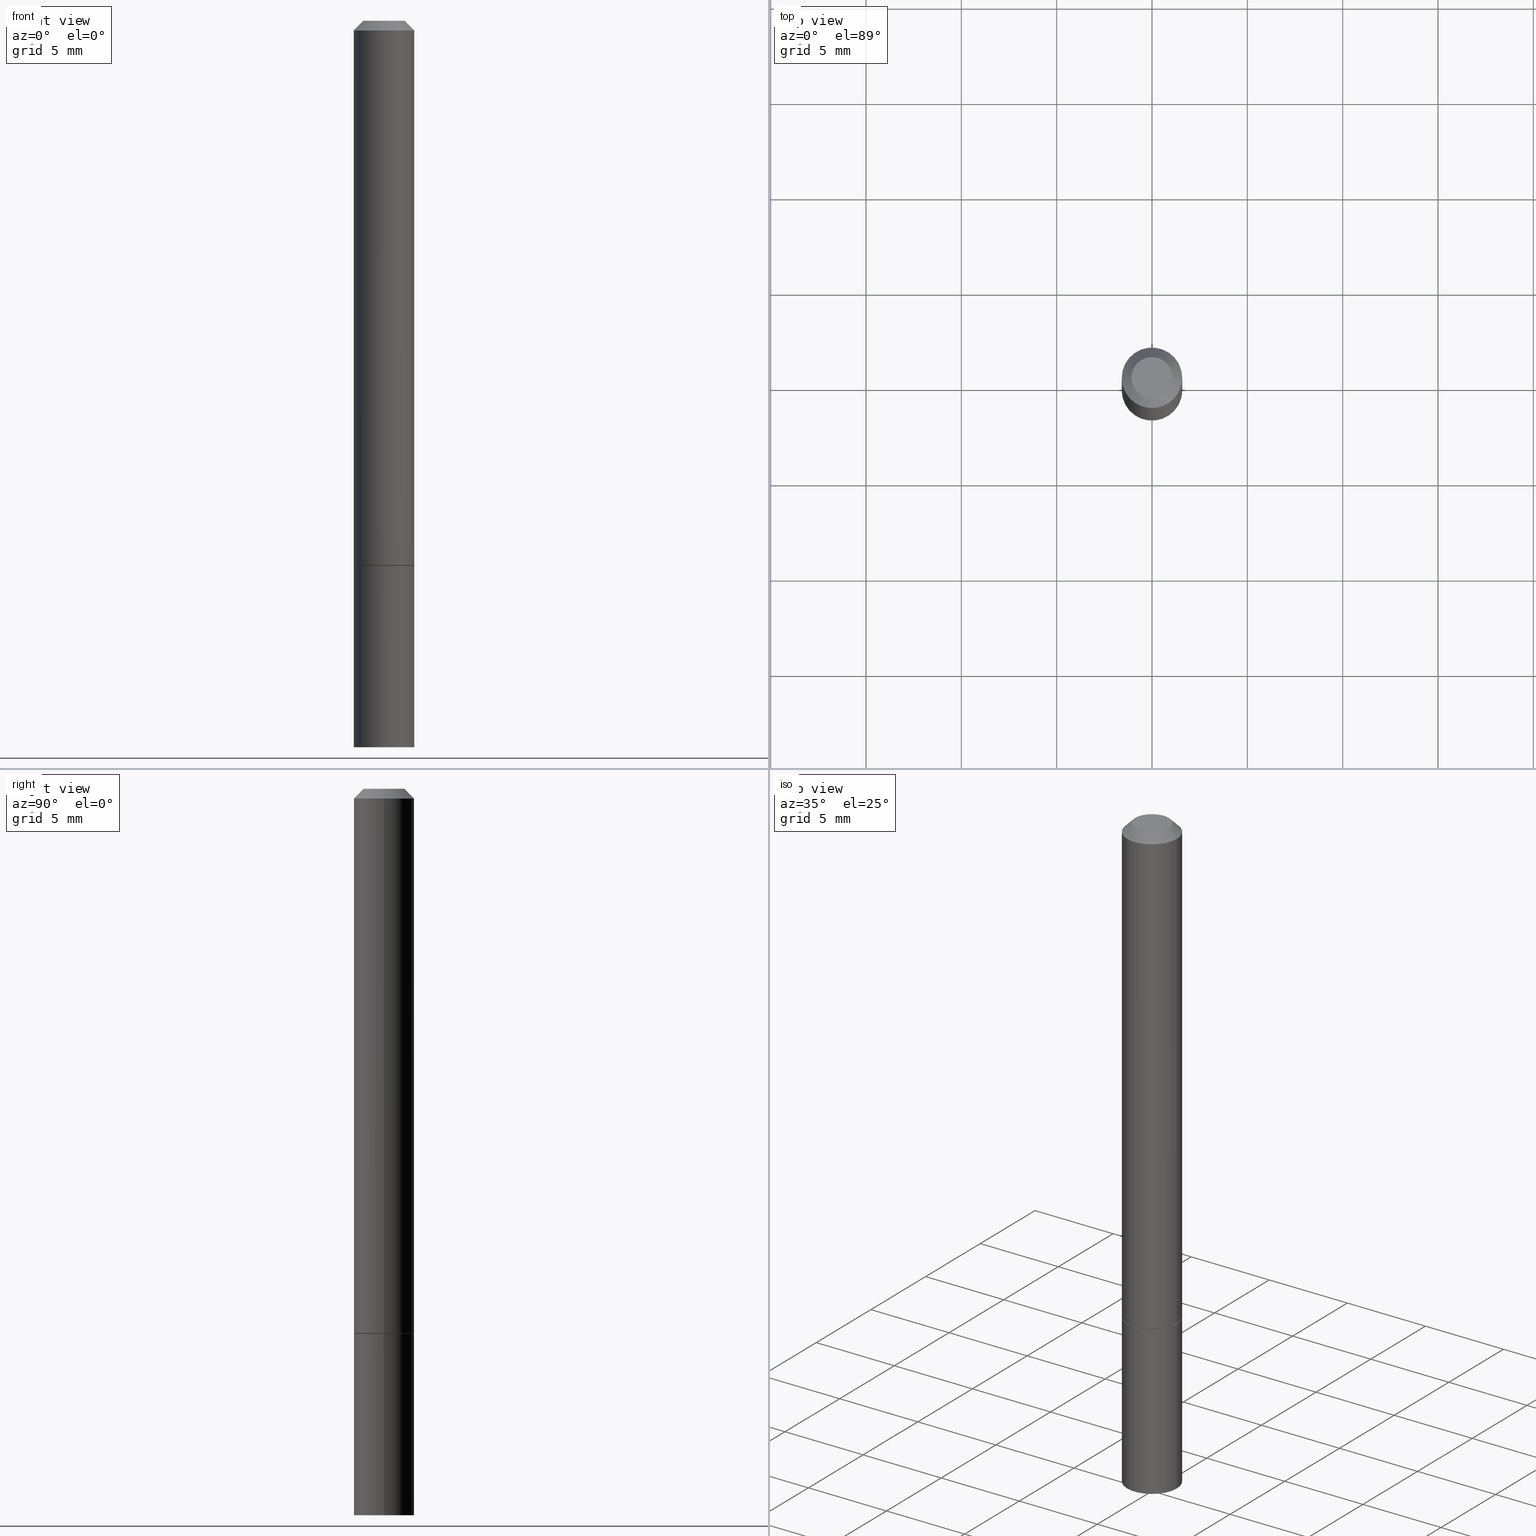
[diagram: canonical four-view strip — front | top / right | iso, engineering-drawing reading convention]
A machine part, canonical four-view strip (front | top / right | iso — engineering-drawing reading convention). The complete STEP part file that produces these views, byte-faithful:
ISO-10303-21;
HEADER;
FILE_DESCRIPTION (( 'STEP AP203' ),
    '1' );
FILE_NAME ('36404.STEP',
    '2024-02-27T19:16:08',
    ( '' ),
    ( '' ),
    'SwSTEP 2.0',
    'SolidWorks 2023',
    '' );
FILE_SCHEMA (( 'CONFIG_CONTROL_DESIGN' ));
ENDSEC;

DATA;
#1 = DIRECTION ( 'NONE',  ( -2.445468806185136597E-29, 3.491481338843145583E-15, 1.000000000000000000 ) ) ;
#2 = EDGE_LOOP ( 'NONE', ( #313, #316, #230, #118 ) ) ;
#3 = ORIENTED_EDGE ( 'NONE', *, *, #249, .F. ) ;
#4 = APPROVAL_PERSON_ORGANIZATION ( #197, #144, #23 ) ;
#5 = ORIENTED_EDGE ( 'NONE', *, *, #258, .T. ) ;
#6 = DIRECTION ( 'NONE',  ( 1.000000000000000000, 0.000000000000000000, 0.000000000000000000 ) ) ;
#7 = LINE ( 'NONE', #36, #360 ) ;
#8 = DIMENSIONAL_EXPONENTS ( 1.000000000000000000, 0.000000000000000000, 0.000000000000000000, 0.000000000000000000, 0.000000000000000000, 0.000000000000000000, 0.000000000000000000 ) ;
#9 = DIRECTION ( 'NONE',  ( 1.000000000000000000, -6.982962677686269077E-15, 0.000000000000000000 ) ) ;
#10 = DIRECTION ( 'NONE',  ( 1.000000000000000000, -6.982962677686267499E-15, 4.879498284297452955E-29 ) ) ;
#11 = DIRECTION ( 'NONE',  ( -2.445468806185136877E-29, 3.491481338843145188E-15, 1.000000000000000000 ) ) ;
#12 = CIRCLE ( 'NONE', #30, 0.06249999999999988204 ) ;
#13 = DIRECTION ( 'NONE',  ( -2.445468806185136597E-29, 3.491481338843145583E-15, 1.000000000000000000 ) ) ;
#14 = CARTESIAN_POINT ( 'NONE',  ( 3.668203209277706016E-29, -5.237222008264719754E-15, -1.500000000000000444 ) ) ;
#15 = DIRECTION ( 'NONE',  ( 1.000000000000000000, -6.982962677686269077E-15, 0.000000000000000000 ) ) ;
#16 = ORIENTED_EDGE ( 'NONE', *, *, #59, .F. ) ;
#17 = CONICAL_SURFACE ( 'NONE', #303, 0.06249999999999988204, 0.7853981633974467247 ) ;
#18 = CARTESIAN_POINT ( 'NONE',  ( 4.890937612370284544E-31, -6.982962677686307633E-17, -0.02000000000000004552 ) ) ;
#19 = DIRECTION ( 'NONE',  ( 2.438088387897960049E-29, -3.491481338843145188E-15, -1.000000000000000000 ) ) ;
#20 = PRODUCT ( '36404', '36404', '', ( #344 ) ) ;
#21 = DATE_AND_TIME ( #280, #33 ) ;
#22 = ORIENTED_EDGE ( 'NONE', *, *, #275, .F. ) ;
#23 = APPROVAL_ROLE ( '' ) ;
#24 = PRODUCT_DEFINITION_FORMATION_WITH_SPECIFIED_SOURCE ( 'ANY', '', #20, .NOT_KNOWN. ) ;
#25 = CONICAL_SURFACE ( 'NONE', #283, 0.06150000000000001299, 0.7853981633974141952 ) ;
#26 = LINE ( 'NONE', #340, #174 ) ;
#27 = EDGE_LOOP ( 'NONE', ( #51, #53, #330, #286 ) ) ;
#28 = DATE_AND_TIME ( #285, #296 ) ;
#29 = AXIS2_PLACEMENT_3D ( 'NONE', #98, #208, #35 ) ;
#30 = AXIS2_PLACEMENT_3D ( 'NONE', #105, #126, #100 ) ;
#31 = APPROVAL ( #354, 'UNSPECIFIED' ) ;
#32 = VERTEX_POINT ( 'NONE', #97 ) ;
#33 = LOCAL_TIME ( 14, 16, 8.000000000000000000, #326 ) ;
#34 = DIRECTION ( 'NONE',  ( -2.445468806185136597E-29, 3.491481338843145583E-15, 1.000000000000000000 ) ) ;
#35 = DIRECTION ( 'NONE',  ( 1.000000000000000000, -6.982962677686268288E-15, 0.000000000000000000 ) ) ;
#36 = CARTESIAN_POINT ( 'NONE',  ( -0.06249999999999995143, 4.440892098500622710E-16, -3.074334431409313661E-30 ) ) ;
#37 = FACE_OUTER_BOUND ( 'NONE', #130, .T. ) ;
#38 = DIRECTION ( 'NONE',  ( -1.000000000000000000, 6.982962677686265922E-15, -4.876176775795935793E-29 ) ) ;
#39 = APPROVAL_PERSON_ORGANIZATION ( #165, #31, #75 ) ;
#40 = VECTOR ( 'NONE', #183, 39.37007874015748143 ) ;
#41 = CARTESIAN_POINT ( 'NONE',  ( -0.06250000000000001388, -4.138480047381567268E-15, -1.125000000000000444 ) ) ;
#42 = CARTESIAN_POINT ( 'NONE',  ( 0.06249999999999995143, -4.364351673553913243E-16, 3.047610484872457418E-30 ) ) ;
#43 = UNCERTAINTY_MEASURE_WITH_UNIT (LENGTH_MEASURE( 1.000000000000000082E-05 ), #350, 'distance_accuracy_value', 'NONE');
#44 = DIRECTION ( 'NONE',  ( 1.000000000000000000, -6.982962677686267499E-15, 4.879498284297452955E-29 ) ) ;
#45 = APPLICATION_PROTOCOL_DEFINITION ( 'international standard', 'config_control_design', 1994, #83 ) ;
#46 = DIRECTION ( 'NONE',  ( -2.445468806185136597E-29, 3.491481338843145583E-15, 1.000000000000000000 ) ) ;
#47 = ORIENTED_EDGE ( 'NONE', *, *, #268, .F. ) ;
#48 = AXIS2_PLACEMENT_3D ( 'NONE', #190, #46, #162 ) ;
#49 = DIRECTION ( 'NONE',  ( 1.000000000000000000, -6.982962677686266711E-15, 4.876176775795935793E-29 ) ) ;
#50 = PERSON_AND_ORGANIZATION_ROLE ( 'design_owner' ) ;
#51 = ORIENTED_EDGE ( 'NONE', *, *, #275, .T. ) ;
#52 = PLANE ( 'NONE',  #254 ) ;
#53 = ORIENTED_EDGE ( 'NONE', *, *, #343, .T. ) ;
#54 = CONICAL_SURFACE ( 'NONE', #29, 0.06150000000000001299, 0.7853981633974141952 ) ;
#55 = SHAPE_DEFINITION_REPRESENTATION ( #334, #86 ) ;
#56 = EDGE_CURVE ( 'NONE', #342, #248, #26, .T. ) ;
#57 = APPROVAL_STATUS ( 'not_yet_approved' ) ;
#58 = ADVANCED_FACE ( 'NONE', ( #201 ), #25, .T. ) ;
#59 = EDGE_CURVE ( 'NONE', #248, #206, #12, .T. ) ;
#60 = ORIENTED_EDGE ( 'NONE', *, *, #238, .F. ) ;
#61 = CARTESIAN_POINT ( 'NONE',  ( 2.748706938152094189E-29, -3.924425024859697006E-15, -1.124000000000000332 ) ) ;
#62 = APPLICATION_PROTOCOL_DEFINITION ( 'international standard', 'config_control_design', 1994, #121 ) ;
#63 = AXIS2_PLACEMENT_3D ( 'NONE', #159, #13, #68 ) ;
#64 = LINE ( 'NONE', #160, #355 ) ;
#65 = ADVANCED_FACE ( 'NONE', ( #322 ), #67, .T. ) ;
#66 = DIRECTION ( 'NONE',  ( -2.445468806185136597E-29, 3.491481338843145583E-15, 1.000000000000000000 ) ) ;
#67 = CYLINDRICAL_SURFACE ( 'NONE', #234, 0.06250000000000001388 ) ;
#68 = DIRECTION ( 'NONE',  ( 1.000000000000000000, -6.982962677686267499E-15, 4.876176775795935793E-29 ) ) ;
#69 = CARTESIAN_POINT ( 'NONE',  ( 4.364351673554192795E-16, 0.06249999999999608646, -1.125000000000000666 ) ) ;
#70 = DIRECTION ( 'NONE',  ( 1.000000000000000000, -6.982962677686261189E-15, 0.000000000000000000 ) ) ;
#71 = APPROVAL_PERSON_ORGANIZATION ( #259, #127, #228 ) ;
#72 = PRODUCT_RELATED_PRODUCT_CATEGORY ( 'detail', '', ( #20 ) ) ;
#73 = COORDINATED_UNIVERSAL_TIME_OFFSET ( 5, 0, .BEHIND. ) ;
#74 = CARTESIAN_POINT ( 'NONE',  ( -0.06250000000000001388, 4.440892098500627148E-16, -3.074334431409317165E-30 ) ) ;
#75 = APPROVAL_ROLE ( '' ) ;
#76 = DIRECTION ( 'NONE',  ( -2.445468806185136597E-29, 3.491481338843145583E-15, 1.000000000000000000 ) ) ;
#77 = ORIENTED_EDGE ( 'NONE', *, *, #119, .F. ) ;
#78 = DIRECTION ( 'NONE',  ( 2.438088387897960049E-29, -3.491481338843145188E-15, -1.000000000000000000 ) ) ;
#79 = LOCAL_TIME ( 14, 16, 8.000000000000000000, #73 ) ;
#80 = PLANE ( 'NONE',  #158 ) ;
#81 = ORIENTED_EDGE ( 'NONE', *, *, #123, .T. ) ;
#82 = PERSON_AND_ORGANIZATION_ROLE ( 'creator' ) ;
#83 = APPLICATION_CONTEXT ( 'configuration controlled 3d designs of mechanical parts and assemblies' ) ;
#84 = DATE_AND_TIME ( #88, #106 ) ;
#85 = ADVANCED_FACE ( 'NONE', ( #242 ), #327, .T. ) ;
#86 = ADVANCED_BREP_SHAPE_REPRESENTATION ( '36404', ( #291, #300, #253 ), #198 ) ;
#87 = DIRECTION ( 'NONE',  ( 0.7071067811865464625, -7.319954787623252890E-15, -0.7071067811865486830 ) ) ;
#88 = CALENDAR_DATE ( 2024, 27, 2 ) ;
#89 = ADVANCED_FACE ( 'NONE', ( #213 ), #151, .F. ) ;
#90 = EDGE_LOOP ( 'NONE', ( #22, #47 ) ) ;
#91 = EDGE_CURVE ( 'NONE', #290, #248, #103, .T. ) ;
#92 = APPROVAL_STATUS ( 'not_yet_approved' ) ;
#93 = LOCAL_TIME ( 14, 16, 8.000000000000000000, #255 ) ;
#94 = ORIENTED_EDGE ( 'NONE', *, *, #195, .F. ) ;
#95 = AXIS2_PLACEMENT_3D ( 'NONE', #363, #78, #222 ) ;
#96 =( NAMED_UNIT ( * ) PLANE_ANGLE_UNIT ( ) SI_UNIT ( $, .RADIAN. ) );
#97 = CARTESIAN_POINT ( 'NONE',  ( 0.06250000000000001388, -4.364351673553932471E-15, -1.125000000000000444 ) ) ;
#98 = CARTESIAN_POINT ( 'NONE',  ( 2.751152406958279792E-29, -3.927916506198540013E-15, -1.125000000000000444 ) ) ;
#99 = CARTESIAN_POINT ( 'NONE',  ( -0.06150000000000001299, -3.485634269357856397E-15, -1.125000000000000444 ) ) ;
#100 = DIRECTION ( 'NONE',  ( 1.000000000000000000, -6.982962677686266711E-15, 0.000000000000000000 ) ) ;
#101 = CIRCLE ( 'NONE', #163, 0.06250000000000001388 ) ;
#102 = CARTESIAN_POINT ( 'NONE',  ( 2.751152406958279792E-29, -3.927916506198540013E-15, -1.125000000000000444 ) ) ;
#103 = LINE ( 'NONE', #42, #40 ) ;
#104 = EDGE_CURVE ( 'NONE', #289, #290, #110, .T. ) ;
#105 = CARTESIAN_POINT ( 'NONE',  ( 4.890937612370284544E-31, -6.982962677686307633E-17, -0.02000000000000004552 ) ) ;
#106 = LOCAL_TIME ( 14, 16, 8.000000000000000000, #264 ) ;
#107 = AXIS2_PLACEMENT_3D ( 'NONE', #61, #348, #9 ) ;
#108 = DIRECTION ( 'NONE',  ( 1.000000000000000000, -6.982962677686268288E-15, 0.000000000000000000 ) ) ;
#109 = CARTESIAN_POINT ( 'NONE',  ( 2.751152406958279792E-29, -3.927916506198540013E-15, -1.125000000000000444 ) ) ;
#110 = CIRCLE ( 'NONE', #107, 0.06250000000000001388 ) ;
#111 = DIRECTION ( 'NONE',  ( -1.000000000000000000, 6.982962677686266711E-15, 0.000000000000000000 ) ) ;
#112 = ORIENTED_EDGE ( 'NONE', *, *, #119, .T. ) ;
#113 = DATE_AND_TIME ( #362, #93 ) ;
#114 = ORIENTED_EDGE ( 'NONE', *, *, #343, .F. ) ;
#115 = PERSON_AND_ORGANIZATION ( #281, #241 ) ;
#116 = ORIENTED_EDGE ( 'NONE', *, *, #187, .T. ) ;
#117 = CARTESIAN_POINT ( 'NONE',  ( 0.04249999999999991979, -3.950909582714363008E-16, -2.561107494060004870E-17 ) ) ;
#118 = ORIENTED_EDGE ( 'NONE', *, *, #147, .F. ) ;
#119 = EDGE_CURVE ( 'NONE', #289, #206, #7, .T. ) ;
#120 = FACE_OUTER_BOUND ( 'NONE', #192, .T. ) ;
#121 = APPLICATION_CONTEXT ( 'configuration controlled 3d designs of mechanical parts and assemblies' ) ;
#122 = CARTESIAN_POINT ( 'NONE',  ( -0.06150000000000001299, -3.490932723706078799E-15, -1.125000000000000444 ) ) ;
#123 = EDGE_CURVE ( 'NONE', #142, #138, #149, .T. ) ;
#124 = DIRECTION ( 'NONE',  ( -2.445468806185136597E-29, 3.491481338843145583E-15, 1.000000000000000000 ) ) ;
#125 = CYLINDRICAL_SURFACE ( 'NONE', #63, 0.06250000000000001388 ) ;
#126 = DIRECTION ( 'NONE',  ( -2.445468806185136597E-29, 3.491481338843145583E-15, 1.000000000000000000 ) ) ;
#127 = APPROVAL ( #57, 'UNSPECIFIED' ) ;
#128 = CARTESIAN_POINT ( 'NONE',  ( -0.06250000000000001388, -4.138480047381567268E-15, -1.500000000000000444 ) ) ;
#129 = CIRCLE ( 'NONE', #223, 0.06250000000000001388 ) ;
#130 = EDGE_LOOP ( 'NONE', ( #265, #366, #282, #94 ) ) ;
#131 = EDGE_CURVE ( 'NONE', #138, #142, #101, .T. ) ;
#132 = CLOSED_SHELL ( 'NONE', ( #353, #231, #89, #65 ) ) ;
#133 = DIRECTION ( 'NONE',  ( 0.7071067811865232589, -2.468850131082003836E-15, 0.7071067811865715536 ) ) ;
#134 = EDGE_LOOP ( 'NONE', ( #257, #245 ) ) ;
#135 = LINE ( 'NONE', #74, #339 ) ;
#136 = APPROVAL_DATE_TIME ( #21, #31 ) ;
#137 = CARTESIAN_POINT ( 'NONE',  ( 0.06150000000000001299, -4.357368710876245668E-15, -1.125000000000000444 ) ) ;
#138 = VERTEX_POINT ( 'NONE', #185 ) ;
#139 = CIRCLE ( 'NONE', #365, 0.04249999999999991979 ) ;
#140 = CIRCLE ( 'NONE', #199, 0.06250000000000001388 ) ;
#141 = CC_DESIGN_PERSON_AND_ORGANIZATION_ASSIGNMENT ( #288, #171, ( #157 ) ) ;
#142 = VERTEX_POINT ( 'NONE', #128 ) ;
#143 = AXIS2_PLACEMENT_3D ( 'NONE', #247, #357, #108 ) ;
#144 = APPROVAL ( #92, 'UNSPECIFIED' ) ;
#145 = AXIS2_PLACEMENT_3D ( 'NONE', #304, #191, #15 ) ;
#146 = ORIENTED_EDGE ( 'NONE', *, *, #187, .F. ) ;
#147 = EDGE_CURVE ( 'NONE', #335, #206, #64, .T. ) ;
#148 = AXIS2_PLACEMENT_3D ( 'NONE', #188, #76, #44 ) ;
#149 = CIRCLE ( 'NONE', #321, 0.06250000000000001388 ) ;
#150 = PERSON_AND_ORGANIZATION ( #281, #241 ) ;
#151 = PLANE ( 'NONE',  #205 ) ;
#152 = EDGE_CURVE ( 'NONE', #32, #332, #140, .T. ) ;
#153 = CARTESIAN_POINT ( 'NONE',  ( 6.263108486011318528E-46, -8.942059022282683748E-32, -2.561107494060246767E-17 ) ) ;
#154 = CARTESIAN_POINT ( 'NONE',  ( 3.668203209277706016E-29, -5.237222008264719754E-15, -1.500000000000000444 ) ) ;
#155 = CC_DESIGN_PERSON_AND_ORGANIZATION_ASSIGNMENT ( #150, #50, ( #20 ) ) ;
#156 =( LENGTH_UNIT ( ) NAMED_UNIT ( * ) SI_UNIT ( $, .METRE. ) );
#157 = SECURITY_CLASSIFICATION ( '', '', #312 ) ;
#158 = AXIS2_PLACEMENT_3D ( 'NONE', #279, #19, #301 ) ;
#159 = CARTESIAN_POINT ( 'NONE',  ( 0.000000000000000000, 0.000000000000000000, 0.000000000000000000 ) ) ;
#160 = CARTESIAN_POINT ( 'NONE',  ( -0.06249999999999988204, 3.666055405785277303E-16, -0.02000000000000004552 ) ) ;
#161 = CARTESIAN_POINT ( 'NONE',  ( 0.06150000000000001299, -4.357368710876245668E-15, -1.125000000000000444 ) ) ;
#162 = DIRECTION ( 'NONE',  ( 1.000000000000000000, -6.982962677686266711E-15, 4.876176775795935793E-29 ) ) ;
#163 = AXIS2_PLACEMENT_3D ( 'NONE', #14, #318, #237 ) ;
#164 = FACE_OUTER_BOUND ( 'NONE', #172, .T. ) ;
#165 = PERSON_AND_ORGANIZATION ( #281, #241 ) ;
#166 = DIRECTION ( 'NONE',  ( -2.445468806185136877E-29, 3.491481338843145188E-15, 1.000000000000000000 ) ) ;
#167 = CC_DESIGN_PERSON_AND_ORGANIZATION_ASSIGNMENT ( #204, #337, ( #24 ) ) ;
#168 = ORIENTED_EDGE ( 'NONE', *, *, #91, .T. ) ;
#169 = CC_DESIGN_APPROVAL ( #127, ( #24 ) ) ;
#170 = ORIENTED_EDGE ( 'NONE', *, *, #195, .T. ) ;
#171 = PERSON_AND_ORGANIZATION_ROLE ( 'classification_officer' ) ;
#172 = EDGE_LOOP ( 'NONE', ( #278, #284 ) ) ;
#173 = VECTOR ( 'NONE', #215, 39.37007874015748854 ) ;
#174 = VECTOR ( 'NONE', #87, 39.37007874015748143 ) ;
#175 = ORIENTED_EDGE ( 'NONE', *, *, #349, .F. ) ;
#176 = DIRECTION ( 'NONE',  ( 1.000000000000000000, -6.982962677686268288E-15, 0.000000000000000000 ) ) ;
#177 = EDGE_LOOP ( 'NONE', ( #224, #116 ) ) ;
#178 = CARTESIAN_POINT ( 'NONE',  ( 0.000000000000000000, 0.000000000000000000, 0.000000000000000000 ) ) ;
#179 = AXIS2_PLACEMENT_3D ( 'NONE', #180, #294, #325 ) ;
#180 = CARTESIAN_POINT ( 'NONE',  ( 4.890937612370284544E-31, -6.982962677686307633E-17, -0.02000000000000004552 ) ) ;
#181 = ADVANCED_FACE ( 'NONE', ( #320 ), #243, .T. ) ;
#182 = LINE ( 'NONE', #122, #173 ) ;
#183 = DIRECTION ( 'NONE',  ( -2.445468806185136877E-29, 3.491481338843145188E-15, 1.000000000000000000 ) ) ;
#184 = DIRECTION ( 'NONE',  ( 1.000000000000000000, -6.982962677686266711E-15, 0.000000000000000000 ) ) ;
#185 = CARTESIAN_POINT ( 'NONE',  ( 0.06250000000000001388, -5.673657175620110635E-15, -1.500000000000000444 ) ) ;
#186 = CALENDAR_DATE ( 2024, 27, 2 ) ;
#187 = EDGE_CURVE ( 'NONE', #332, #32, #305, .T. ) ;
#188 = CARTESIAN_POINT ( 'NONE',  ( 6.263108486011318528E-46, -8.942059022282683748E-32, -2.561107494060246767E-17 ) ) ;
#189 = DATE_AND_TIME ( #186, #79 ) ;
#190 = CARTESIAN_POINT ( 'NONE',  ( 0.000000000000000000, 0.000000000000000000, 0.000000000000000000 ) ) ;
#191 = DIRECTION ( 'NONE',  ( -2.445468806185136597E-29, 3.491481338843145583E-15, 1.000000000000000000 ) ) ;
#192 = EDGE_LOOP ( 'NONE', ( #114, #302, #5, #219 ) ) ;
#193 = CARTESIAN_POINT ( 'NONE',  ( 0.06249999999999988204, -4.986107516375829362E-16, -0.02000000000000004552 ) ) ;
#194 = EDGE_LOOP ( 'NONE', ( #60, #81, #170, #146 ) ) ;
#195 = EDGE_CURVE ( 'NONE', #138, #32, #196, .T. ) ;
#196 = LINE ( 'NONE', #306, #314 ) ;
#197 = PERSON_AND_ORGANIZATION ( #281, #241 ) ;
#198 =( GEOMETRIC_REPRESENTATION_CONTEXT ( 3 ) GLOBAL_UNCERTAINTY_ASSIGNED_CONTEXT ( ( #43 ) ) GLOBAL_UNIT_ASSIGNED_CONTEXT ( ( #350, #96, #324 ) ) REPRESENTATION_CONTEXT ( 'NONE', 'WORKASPACE' ) );
#199 = AXIS2_PLACEMENT_3D ( 'NONE', #102, #295, #211 ) ;
#200 = ADVANCED_FACE ( 'NONE', ( #164 ), #80, .F. ) ;
#201 = FACE_OUTER_BOUND ( 'NONE', #27, .T. ) ;
#202 = APPROVAL_DATE_TIME ( #28, #127 ) ;
#203 = CIRCLE ( 'NONE', #352, 0.06249999999999988204 ) ;
#204 = PERSON_AND_ORGANIZATION ( #281, #241 ) ;
#205 = AXIS2_PLACEMENT_3D ( 'NONE', #69, #272, #38 ) ;
#206 = VERTEX_POINT ( 'NONE', #308 ) ;
#207 = PRODUCT_DEFINITION ( 'UNKNOWN', '', #24, #346 ) ;
#208 = DIRECTION ( 'NONE',  ( -2.445468806185136597E-29, 3.491481338843145583E-15, 1.000000000000000000 ) ) ;
#209 = CARTESIAN_POINT ( 'NONE',  ( 0.000000000000000000, 0.000000000000000000, 0.000000000000000000 ) ) ;
#210 = ADVANCED_FACE ( 'NONE', ( #331 ), #52, .F. ) ;
#211 = DIRECTION ( 'NONE',  ( 1.000000000000000000, -6.982962677686269077E-15, 0.000000000000000000 ) ) ;
#212 = VECTOR ( 'NONE', #133, 39.37007874015748854 ) ;
#213 = FACE_OUTER_BOUND ( 'NONE', #177, .T. ) ;
#214 = CC_DESIGN_DATE_AND_TIME_ASSIGNMENT ( #189, #246, ( #207 ) ) ;
#215 = DIRECTION ( 'NONE',  ( -0.7071067811865232589, 7.493145998870265808E-15, 0.7071067811865715536 ) ) ;
#216 = CARTESIAN_POINT ( 'NONE',  ( 0.000000000000000000, 0.000000000000000000, 0.000000000000000000 ) ) ;
#217 = CC_DESIGN_APPROVAL ( #144, ( #157 ) ) ;
#218 = FACE_OUTER_BOUND ( 'NONE', #2, .T. ) ;
#219 = ORIENTED_EDGE ( 'NONE', *, *, #104, .F. ) ;
#220 = CARTESIAN_POINT ( 'NONE',  ( 2.751152406958279792E-29, -3.927916506198540013E-15, -1.125000000000000444 ) ) ;
#221 = VERTEX_POINT ( 'NONE', #137 ) ;
#222 = DIRECTION ( 'NONE',  ( -1.000000000000000000, 6.982962677686265922E-15, -4.876176775795935793E-29 ) ) ;
#223 = AXIS2_PLACEMENT_3D ( 'NONE', #229, #66, #293 ) ;
#224 = ORIENTED_EDGE ( 'NONE', *, *, #152, .T. ) ;
#225 = ORIENTED_EDGE ( 'NONE', *, *, #104, .T. ) ;
#226 = CIRCLE ( 'NONE', #347, 0.06150000000000001299 ) ;
#227 = ORIENTED_EDGE ( 'NONE', *, *, #349, .T. ) ;
#228 = APPROVAL_ROLE ( '' ) ;
#229 = CARTESIAN_POINT ( 'NONE',  ( 2.748706938152094189E-29, -3.924425024859697006E-15, -1.124000000000000332 ) ) ;
#230 = ORIENTED_EDGE ( 'NONE', *, *, #59, .T. ) ;
#231 = ADVANCED_FACE ( 'NONE', ( #252 ), #277, .T. ) ;
#232 = DATE_TIME_ROLE ( 'classification_date' ) ;
#233 = ADVANCED_FACE ( 'NONE', ( #218 ), #17, .T. ) ;
#234 = AXIS2_PLACEMENT_3D ( 'NONE', #216, #240, #351 ) ;
#235 = EDGE_LOOP ( 'NONE', ( #261, #112, #16, #338 ) ) ;
#236 = CARTESIAN_POINT ( 'NONE',  ( -0.04249999999999991979, 3.316907271900967221E-16, -2.561107494060466786E-17 ) ) ;
#237 = DIRECTION ( 'NONE',  ( 1.000000000000000000, -6.982962677686261189E-15, 0.000000000000000000 ) ) ;
#238 = EDGE_CURVE ( 'NONE', #142, #332, #135, .T. ) ;
#239 = DIRECTION ( 'NONE',  ( -2.445468806185136597E-29, 3.491481338843145583E-15, 1.000000000000000000 ) ) ;
#240 = DIRECTION ( 'NONE',  ( -2.445468806185136597E-29, 3.491481338843145583E-15, 1.000000000000000000 ) ) ;
#241 = ORGANIZATION ( 'UNSPECIFIED', 'UNSPECIFIED', '' ) ;
#242 = FACE_OUTER_BOUND ( 'NONE', #345, .T. ) ;
#243 = CYLINDRICAL_SURFACE ( 'NONE', #298, 0.06249999999999995143 ) ;
#244 = CC_DESIGN_SECURITY_CLASSIFICATION ( #157, ( #24 ) ) ;
#245 = ORIENTED_EDGE ( 'NONE', *, *, #123, .F. ) ;
#246 = DATE_TIME_ROLE ( 'creation_date' ) ;
#247 = CARTESIAN_POINT ( 'NONE',  ( 2.751152406958279792E-29, -3.927916506198540013E-15, -1.125000000000000444 ) ) ;
#248 = VERTEX_POINT ( 'NONE', #193 ) ;
#249 = EDGE_CURVE ( 'NONE', #335, #342, #287, .T. ) ;
#250 = DIRECTION ( 'NONE',  ( -2.445468806185136877E-29, 3.491481338843145188E-15, 1.000000000000000000 ) ) ;
#251 = PERSON_AND_ORGANIZATION ( #281, #241 ) ;
#252 = FACE_OUTER_BOUND ( 'NONE', #134, .T. ) ;
#253 = AXIS2_PLACEMENT_3D ( 'NONE', #209, #267, #6 ) ;
#254 = AXIS2_PLACEMENT_3D ( 'NONE', #109, #328, #256 ) ;
#255 = COORDINATED_UNIVERSAL_TIME_OFFSET ( 5, 0, .BEHIND. ) ;
#256 = DIRECTION ( 'NONE',  ( 1.000000000000000000, -6.982962677686265922E-15, 4.876176775795935793E-29 ) ) ;
#257 = ORIENTED_EDGE ( 'NONE', *, *, #131, .F. ) ;
#258 = EDGE_CURVE ( 'NONE', #221, #290, #359, .T. ) ;
#259 = PERSON_AND_ORGANIZATION ( #281, #241 ) ;
#260 = CARTESIAN_POINT ( 'NONE',  ( 0.06250000000000001388, -4.360860192215088675E-15, -1.124000000000000332 ) ) ;
#261 = ORIENTED_EDGE ( 'NONE', *, *, #297, .T. ) ;
#262 = ADVANCED_FACE ( 'NONE', ( #274 ), #329, .T. ) ;
#263 = ORIENTED_EDGE ( 'NONE', *, *, #56, .F. ) ;
#264 = COORDINATED_UNIVERSAL_TIME_OFFSET ( 5, 0, .BEHIND. ) ;
#265 = ORIENTED_EDGE ( 'NONE', *, *, #131, .T. ) ;
#266 = CIRCLE ( 'NONE', #143, 0.06150000000000001299 ) ;
#267 = DIRECTION ( 'NONE',  ( 0.000000000000000000, 0.000000000000000000, 1.000000000000000000 ) ) ;
#268 = EDGE_CURVE ( 'NONE', #356, #221, #266, .T. ) ;
#269 = DIRECTION ( 'NONE',  ( -2.445468806185136597E-29, 3.491481338843145583E-15, 1.000000000000000000 ) ) ;
#270 = DIRECTION ( 'NONE',  ( 1.000000000000000000, -6.982962677686268288E-15, 0.000000000000000000 ) ) ;
#271 = CARTESIAN_POINT ( 'NONE',  ( 4.890937612370284544E-31, -6.982962677686307633E-17, -0.02000000000000004552 ) ) ;
#272 = DIRECTION ( 'NONE',  ( 2.438088387897960049E-29, -3.491481338843145188E-15, -1.000000000000000000 ) ) ;
#273 = CC_DESIGN_PERSON_AND_ORGANIZATION_ASSIGNMENT ( #251, #82, ( #207 ) ) ;
#274 = FACE_OUTER_BOUND ( 'NONE', #235, .T. ) ;
#275 = EDGE_CURVE ( 'NONE', #221, #356, #226, .T. ) ;
#276 = CC_DESIGN_APPROVAL ( #31, ( #207 ) ) ;
#277 = PLANE ( 'NONE',  #95 ) ;
#278 = ORIENTED_EDGE ( 'NONE', *, *, #249, .T. ) ;
#279 = CARTESIAN_POINT ( 'NONE',  ( 2.967759138016657633E-16, 0.04249999999999991979, -1.611934943711346547E-16 ) ) ;
#280 = CALENDAR_DATE ( 2024, 27, 2 ) ;
#281 = PERSON ( 'UNSPECIFIED', 'UNSPECIFIED', 'UNSPECIFIED', ('UNSPECIFIED'), ('UNSPECIFIED'), ('UNSPECIFIED') ) ;
#282 = ORIENTED_EDGE ( 'NONE', *, *, #152, .F. ) ;
#283 = AXIS2_PLACEMENT_3D ( 'NONE', #311, #34, #270 ) ;
#284 = ORIENTED_EDGE ( 'NONE', *, *, #323, .T. ) ;
#285 = CALENDAR_DATE ( 2024, 27, 2 ) ;
#286 = ORIENTED_EDGE ( 'NONE', *, *, #258, .F. ) ;
#287 = CIRCLE ( 'NONE', #148, 0.04249999999999991979 ) ;
#288 = PERSON_AND_ORGANIZATION ( #281, #241 ) ;
#289 = VERTEX_POINT ( 'NONE', #310 ) ;
#290 = VERTEX_POINT ( 'NONE', #260 ) ;
#291 = MANIFOLD_SOLID_BREP ( 'Body-Move/Copy2[1]', #132 ) ;
#292 = DIRECTION ( 'NONE',  ( -2.445468806185136597E-29, 3.491481338843145583E-15, 1.000000000000000000 ) ) ;
#293 = DIRECTION ( 'NONE',  ( 1.000000000000000000, -6.982962677686269077E-15, 0.000000000000000000 ) ) ;
#294 = DIRECTION ( 'NONE',  ( 2.445468806185136597E-29, -3.491481338843145583E-15, -1.000000000000000000 ) ) ;
#295 = DIRECTION ( 'NONE',  ( -2.445468806185136597E-29, 3.491481338843145583E-15, 1.000000000000000000 ) ) ;
#296 = LOCAL_TIME ( 14, 16, 8.000000000000000000, #364 ) ;
#297 = EDGE_CURVE ( 'NONE', #290, #289, #129, .T. ) ;
#298 = AXIS2_PLACEMENT_3D ( 'NONE', #178, #269, #49 ) ;
#299 = DIRECTION ( 'NONE',  ( -0.7071067811865464625, 2.468850131082245228E-15, -0.7071067811865486830 ) ) ;
#300 = MANIFOLD_SOLID_BREP ( 'Body-Move/Copy2[2]', #341 ) ;
#301 = DIRECTION ( 'NONE',  ( -1.000000000000000000, 6.982962677686265922E-15, -4.876176775795935793E-29 ) ) ;
#302 = ORIENTED_EDGE ( 'NONE', *, *, #268, .T. ) ;
#303 = AXIS2_PLACEMENT_3D ( 'NONE', #18, #333, #111 ) ;
#304 = CARTESIAN_POINT ( 'NONE',  ( 2.751152406958279792E-29, -3.927916506198540013E-15, -1.125000000000000444 ) ) ;
#305 = CIRCLE ( 'NONE', #145, 0.06250000000000001388 ) ;
#306 = CARTESIAN_POINT ( 'NONE',  ( 0.06250000000000001388, -4.364351673553918173E-16, 3.047610484872460571E-30 ) ) ;
#307 = ORIENTED_EDGE ( 'NONE', *, *, #147, .T. ) ;
#308 = CARTESIAN_POINT ( 'NONE',  ( -0.06249999999999988204, 3.666055405785277303E-16, -0.02000000000000004552 ) ) ;
#309 = APPROVAL_DATE_TIME ( #113, #144 ) ;
#310 = CARTESIAN_POINT ( 'NONE',  ( -0.06250000000000001388, -1.553038115968215367E-15, -1.124000000000000332 ) ) ;
#311 = CARTESIAN_POINT ( 'NONE',  ( 2.751152406958279792E-29, -3.927916506198540013E-15, -1.125000000000000444 ) ) ;
#312 = SECURITY_CLASSIFICATION_LEVEL ( 'unclassified' ) ;
#313 = ORIENTED_EDGE ( 'NONE', *, *, #323, .F. ) ;
#314 = VECTOR ( 'NONE', #166, 39.37007874015748143 ) ;
#315 = PERSON_AND_ORGANIZATION_ROLE ( 'creator' ) ;
#316 = ORIENTED_EDGE ( 'NONE', *, *, #56, .T. ) ;
#317 = ADVANCED_FACE ( 'NONE', ( #120 ), #54, .T. ) ;
#318 = DIRECTION ( 'NONE',  ( -2.445468806185136597E-29, 3.491481338843145583E-15, 1.000000000000000000 ) ) ;
#319 = LENGTH_MEASURE_WITH_UNIT ( LENGTH_MEASURE( 0.02539999999999999897 ), #156 );
#320 = FACE_OUTER_BOUND ( 'NONE', #358, .T. ) ;
#321 = AXIS2_PLACEMENT_3D ( 'NONE', #154, #124, #70 ) ;
#322 = FACE_OUTER_BOUND ( 'NONE', #194, .T. ) ;
#323 = EDGE_CURVE ( 'NONE', #342, #335, #139, .T. ) ;
#324 =( NAMED_UNIT ( * ) SI_UNIT ( $, .STERADIAN. ) SOLID_ANGLE_UNIT ( ) );
#325 = DIRECTION ( 'NONE',  ( -1.000000000000000000, 6.982962677686266711E-15, 0.000000000000000000 ) ) ;
#326 = COORDINATED_UNIVERSAL_TIME_OFFSET ( 5, 0, .BEHIND. ) ;
#327 = CONICAL_SURFACE ( 'NONE', #179, 0.06249999999999988204, 0.7853981633974467247 ) ;
#328 = DIRECTION ( 'NONE',  ( -2.438088387897960049E-29, 3.491481338843145188E-15, 1.000000000000000000 ) ) ;
#329 = CYLINDRICAL_SURFACE ( 'NONE', #48, 0.06249999999999995143 ) ;
#330 = ORIENTED_EDGE ( 'NONE', *, *, #297, .F. ) ;
#331 = FACE_OUTER_BOUND ( 'NONE', #90, .T. ) ;
#332 = VERTEX_POINT ( 'NONE', #41 ) ;
#333 = DIRECTION ( 'NONE',  ( 2.445468806185136597E-29, -3.491481338843145583E-15, -1.000000000000000000 ) ) ;
#334 = PRODUCT_DEFINITION_SHAPE ( 'NONE', 'NONE',  #207 ) ;
#335 = VERTEX_POINT ( 'NONE', #236 ) ;
#336 = CC_DESIGN_DATE_AND_TIME_ASSIGNMENT ( #84, #232, ( #157 ) ) ;
#337 = PERSON_AND_ORGANIZATION_ROLE ( 'design_supplier' ) ;
#338 = ORIENTED_EDGE ( 'NONE', *, *, #91, .F. ) ;
#339 = VECTOR ( 'NONE', #250, 39.37007874015748143 ) ;
#340 = CARTESIAN_POINT ( 'NONE',  ( 0.06249999999999988204, -4.986107516375829362E-16, -0.02000000000000004552 ) ) ;
#341 = CLOSED_SHELL ( 'NONE', ( #58, #262, #233, #85, #181, #317, #210, #200 ) ) ;
#342 = VERTEX_POINT ( 'NONE', #117 ) ;
#343 = EDGE_CURVE ( 'NONE', #356, #289, #182, .T. ) ;
#344 = MECHANICAL_CONTEXT ( 'NONE', #121, 'mechanical' ) ;
#345 = EDGE_LOOP ( 'NONE', ( #263, #3, #307, #227 ) ) ;
#346 = DESIGN_CONTEXT ( 'detailed design', #83, 'design' ) ;
#347 = AXIS2_PLACEMENT_3D ( 'NONE', #220, #1, #176 ) ;
#348 = DIRECTION ( 'NONE',  ( -2.445468806185136597E-29, 3.491481338843145583E-15, 1.000000000000000000 ) ) ;
#349 = EDGE_CURVE ( 'NONE', #206, #248, #203, .T. ) ;
#350 =( CONVERSION_BASED_UNIT ( 'INCH', #319 ) LENGTH_UNIT ( ) NAMED_UNIT ( #8 ) );
#351 = DIRECTION ( 'NONE',  ( 1.000000000000000000, -6.982962677686267499E-15, 4.876176775795935793E-29 ) ) ;
#352 = AXIS2_PLACEMENT_3D ( 'NONE', #271, #292, #184 ) ;
#353 = ADVANCED_FACE ( 'NONE', ( #37 ), #125, .T. ) ;
#354 = APPROVAL_STATUS ( 'not_yet_approved' ) ;
#355 = VECTOR ( 'NONE', #299, 39.37007874015748143 ) ;
#356 = VERTEX_POINT ( 'NONE', #99 ) ;
#357 = DIRECTION ( 'NONE',  ( -2.445468806185136597E-29, 3.491481338843145583E-15, 1.000000000000000000 ) ) ;
#358 = EDGE_LOOP ( 'NONE', ( #77, #225, #168, #175 ) ) ;
#359 = LINE ( 'NONE', #161, #212 ) ;
#360 = VECTOR ( 'NONE', #11, 39.37007874015748143 ) ;
#361 = CC_DESIGN_PERSON_AND_ORGANIZATION_ASSIGNMENT ( #115, #315, ( #24 ) ) ;
#362 = CALENDAR_DATE ( 2024, 27, 2 ) ;
#363 = CARTESIAN_POINT ( 'NONE',  ( 4.364351673554284500E-16, 0.06249999999999478195, -1.500000000000000666 ) ) ;
#364 = COORDINATED_UNIVERSAL_TIME_OFFSET ( 5, 0, .BEHIND. ) ;
#365 = AXIS2_PLACEMENT_3D ( 'NONE', #153, #239, #10 ) ;
#366 = ORIENTED_EDGE ( 'NONE', *, *, #238, .T. ) ;
ENDSEC;
END-ISO-10303-21;
